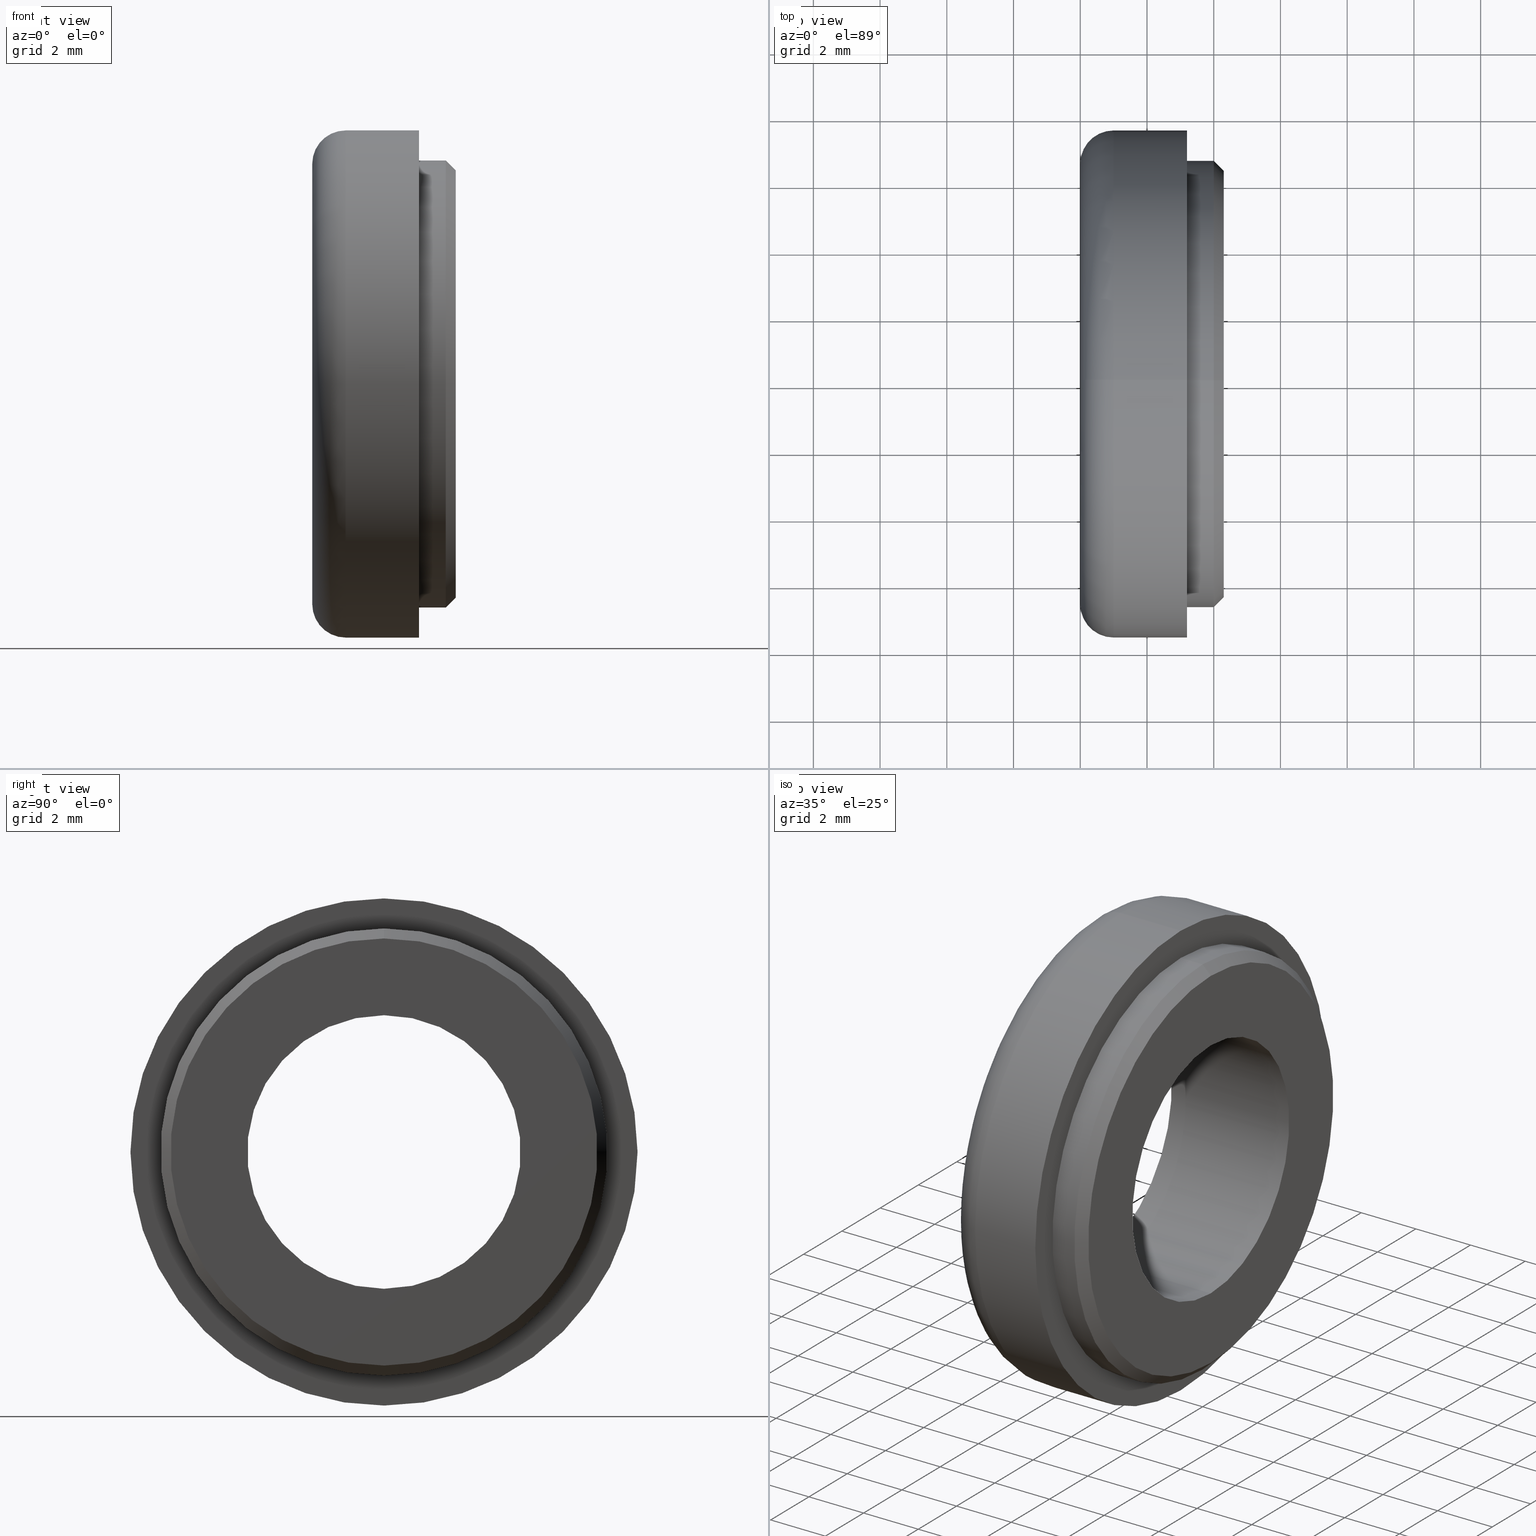
[diagram: canonical four-view strip — front | top / right | iso, engineering-drawing reading convention]
A machine part, canonical four-view strip (front | top / right | iso — engineering-drawing reading convention). The complete STEP part file that produces these views, byte-faithful:
ISO-10303-21;
HEADER;
FILE_DESCRIPTION (( 'STEP AP214' ),
    '1' );
FILE_NAME ('TL_421_M8.STEP',
    '2016-01-25T00:50:41',
    ( '' ),
    ( '' ),
    'SwSTEP 2.0',
    'SolidWorks 2015',
    '' );
FILE_SCHEMA (( 'AUTOMOTIVE_DESIGN' ));
ENDSEC;

DATA;
#1 = AXIS2_PLACEMENT_3D ( 'NONE', #80, #31, #284 ) ;
#2 = DIRECTION ( 'NONE',  ( 0.0000000000000000000, 0.0000000000000000000, 1.000000000000000000 ) ) ;
#3 = MANIFOLD_SOLID_BREP ( '��� - �����o��1', #550 ) ;
#4 = VECTOR ( 'NONE', #346, 1000.000000000000000 ) ;
#5 = EDGE_CURVE ( 'NONE', #442, #513, #127, .T. ) ;
#6 = SHAPE_DEFINITION_REPRESENTATION ( #459, #75 ) ;
#7 = AXIS2_PLACEMENT_3D ( 'NONE', #502, #132, #210 ) ;
#8 = PRODUCT_CONTEXT ( 'NONE', #714, 'mechanical' ) ;
#9 = DIRECTION ( 'NONE',  ( -1.000000000000000000, -0.0000000000000000000, -0.0000000000000000000 ) ) ;
#10 = CARTESIAN_POINT ( 'NONE',  ( 3.299999999999997200, 7.837739514543060900E-016, -6.400000000000000400 ) ) ;
#11 = EDGE_LOOP ( 'NONE', ( #73, #503, #509, #719 ) ) ;
#12 = ORIENTED_EDGE ( 'NONE', *, *, #604, .F. ) ;
#13 = SURFACE_SIDE_STYLE ('',( #275 ) ) ;
#14 = DIRECTION ( 'NONE',  ( 0.0000000000000000000, 0.0000000000000000000, 1.000000000000000000 ) ) ;
#15 = CYLINDRICAL_SURFACE ( 'NONE', #485, 6.599999999999999600 ) ;
#16 = EDGE_CURVE ( 'NONE', #224, #535, #350, .T. ) ;
#17 = ORIENTED_EDGE ( 'NONE', *, *, #510, .T. ) ;
#18 = AXIS2_PLACEMENT_3D ( 'NONE', #109, #638, #460 ) ;
#19 = ORIENTED_EDGE ( 'NONE', *, *, #524, .T. ) ;
#20 = DIRECTION ( 'NONE',  ( 0.0000000000000000000, 1.000000000000000000, -1.224646799147353200E-016 ) ) ;
#21 = ORIENTED_EDGE ( 'NONE', *, *, #437, .F. ) ;
#22 = CARTESIAN_POINT ( 'NONE',  ( 1.000000000000000000, 0.0000000000000000000, 6.599999999999999600 ) ) ;
#23 = DIRECTION ( 'NONE',  ( 0.0000000000000000000, 0.0000000000000000000, 1.000000000000000000 ) ) ;
#24 = EDGE_CURVE ( 'NONE', #521, #95, #159, .T. ) ;
#25 = ORIENTED_EDGE ( 'NONE', *, *, #397, .F. ) ;
#26 = CARTESIAN_POINT ( 'NONE',  ( 2.199999999999993500, 8.082668874372531000E-016, -6.599999999999999600 ) ) ;
#27 = ADVANCED_FACE ( 'NONE', ( #479, #245 ), #477, .F. ) ;
#28 = CARTESIAN_POINT ( 'NONE',  ( 1.000000000000000000, 8.082668874372531000E-016, 6.599999999999999600 ) ) ;
#29 = DIRECTION ( 'NONE',  ( 1.000000000000000000, 0.0000000000000000000, 0.0000000000000000000 ) ) ;
#30 = AXIS2_PLACEMENT_3D ( 'NONE', #266, #730, #515 ) ;
#31 = DIRECTION ( 'NONE',  ( 1.000000000000000000, 0.0000000000000000000, 0.0000000000000000000 ) ) ;
#32 = PRESENTATION_STYLE_ASSIGNMENT (( #261 ) ) ;
#33 = LINE ( 'NONE', #413, #409 ) ;
#34 = ORIENTED_EDGE ( 'NONE', *, *, #701, .F. ) ;
#35 = AXIS2_PLACEMENT_3D ( 'NONE', #533, #242, #416 ) ;
#36 = ORIENTED_EDGE ( 'NONE', *, *, #50, .F. ) ;
#37 = CYLINDRICAL_SURFACE ( 'NONE', #684, 4.099999999999999600 ) ;
#38 = CARTESIAN_POINT ( 'NONE',  ( 1.000000000000000000, 8.082668874372531000E-016, -6.599999999999999600 ) ) ;
#39 = DIRECTION ( 'NONE',  ( -1.000000000000000000, -0.0000000000000000000, -0.0000000000000000000 ) ) ;
#40 = VECTOR ( 'NONE', #611, 1000.000000000000000 ) ;
#41 = DIRECTION ( 'NONE',  ( -1.000000000000000000, -0.0000000000000000000, -0.0000000000000000000 ) ) ;
#42 = ORIENTED_EDGE ( 'NONE', *, *, #418, .T. ) ;
#43 = ADVANCED_FACE ( 'NONE', ( #258 ), #37, .F. ) ;
#44 = VECTOR ( 'NONE', #381, 1000.000000000000000 ) ;
#45 = CARTESIAN_POINT ( 'NONE',  ( -88.98999999999999500, 0.0000000000000000000, 0.0000000000000000000 ) ) ;
#46 = CARTESIAN_POINT ( 'NONE',  ( -88.98999999999999500, 8.205133554287266600E-016, -6.700000000000000200 ) ) ;
#47 = LINE ( 'NONE', #278, #69 ) ;
#48 = VECTOR ( 'NONE', #41, 1000.000000000000000 ) ;
#49 = AXIS2_PLACEMENT_3D ( 'NONE', #352, #212, #319 ) ;
#50 = EDGE_CURVE ( 'NONE', #599, #707, #120, .T. ) ;
#51 =( GEOMETRIC_REPRESENTATION_CONTEXT ( 3 ) GLOBAL_UNCERTAINTY_ASSIGNED_CONTEXT ( ( #667 ) ) GLOBAL_UNIT_ASSIGNED_CONTEXT ( ( #387, #285, #514 ) ) REPRESENTATION_CONTEXT ( 'NONE', 'WORKASPACE' ) );
#52 = DIRECTION ( 'NONE',  ( 1.000000000000000000, 0.0000000000000000000, 0.0000000000000000000 ) ) ;
#53 = CARTESIAN_POINT ( 'NONE',  ( 3.200000000000000200, 0.0000000000000000000, 0.0000000000000000000 ) ) ;
#54 = EDGE_LOOP ( 'NONE', ( #558, #85 ) ) ;
#55 = FILL_AREA_STYLE ('',( #475 ) ) ;
#56 = CARTESIAN_POINT ( 'NONE',  ( -88.98999999999999500, 0.0000000000000000000, 0.0000000000000000000 ) ) ;
#57 = CONICAL_SURFACE ( 'NONE', #732, 6.400000000000000400, 0.7853981633974569400 ) ;
#58 = FACE_OUTER_BOUND ( 'NONE', #539, .T. ) ;
#59 = ORIENTED_EDGE ( 'NONE', *, *, #679, .T. ) ;
#60 = VERTEX_POINT ( 'NONE', #528 ) ;
#61 = DIRECTION ( 'NONE',  ( 0.0000000000000000000, 0.0000000000000000000, 1.000000000000000000 ) ) ;
#62 = ORIENTED_EDGE ( 'NONE', *, *, #328, .F. ) ;
#63 = DIRECTION ( 'NONE',  ( 0.0000000000000000000, 0.0000000000000000000, -1.000000000000000000 ) ) ;
#64 = DIRECTION ( 'NONE',  ( -1.000000000000000000, -0.0000000000000000000, -0.0000000000000000000 ) ) ;
#65 = PRODUCT_DEFINITION_SHAPE ( 'NONE', 'NONE',  #171 ) ;
#66 = CARTESIAN_POINT ( 'NONE',  ( 0.0000000000000000000, 0.0000000000000000000, 0.0000000000000000000 ) ) ;
#67 = EDGE_CURVE ( 'NONE', #535, #630, #686, .T. ) ;
#68 = ADVANCED_FACE ( 'NONE', ( #231, #519 ), #713, .F. ) ;
#69 = VECTOR ( 'NONE', #612, 1000.000000000000000 ) ;
#70 = EDGE_CURVE ( 'NONE', #436, #95, #333, .T. ) ;
#71 = DIRECTION ( 'NONE',  ( -1.000000000000000000, -0.0000000000000000000, -0.0000000000000000000 ) ) ;
#72 = EDGE_LOOP ( 'NONE', ( #518, #316, #151, #236 ) ) ;
#73 = ORIENTED_EDGE ( 'NONE', *, *, #473, .T. ) ;
#74 = CARTESIAN_POINT ( 'NONE',  ( 3.200000000000000200, 9.307315673519885500E-016, -7.599999999999999600 ) ) ;
#75 = SHAPE_REPRESENTATION ( 'TL_421_M8', ( #131, #702, #7 ), #51 ) ;
#76 = DIRECTION ( 'NONE',  ( -1.000000000000000000, -0.0000000000000000000, -0.0000000000000000000 ) ) ;
#77 = DIRECTION ( 'NONE',  ( 0.0000000000000000000, 0.0000000000000000000, 1.000000000000000000 ) ) ;
#78 = CIRCLE ( 'NONE', #96, 6.700000000000000200 ) ;
#79 = ORIENTED_EDGE ( 'NONE', *, *, #110, .F. ) ;
#80 = CARTESIAN_POINT ( 'NONE',  ( 1.000000000000000000, 0.0000000000000000000, 0.0000000000000000000 ) ) ;
#81 = ORIENTED_EDGE ( 'NONE', *, *, #246, .T. ) ;
#82 = DIRECTION ( 'NONE',  ( 1.000000000000000000, 0.0000000000000000000, 0.0000000000000000000 ) ) ;
#83 = FACE_BOUND ( 'NONE', #653, .T. ) ;
#84 = AXIS2_PLACEMENT_3D ( 'NONE', #571, #52, #248 ) ;
#85 = ORIENTED_EDGE ( 'NONE', *, *, #253, .T. ) ;
#86 = DIRECTION ( 'NONE',  ( -1.000000000000000000, 0.0000000000000000000, 0.0000000000000000000 ) ) ;
#87 = CARTESIAN_POINT ( 'NONE',  ( 0.0000000000000000000, 0.0000000000000000000, 0.0000000000000000000 ) ) ;
#88 = FACE_OUTER_BOUND ( 'NONE', #490, .T. ) ;
#89 = SURFACE_STYLE_USAGE ( .BOTH. , #105 ) ;
#90 = ORIENTED_EDGE ( 'NONE', *, *, #385, .F. ) ;
#91 = ADVANCED_FACE ( 'NONE', ( #633, #500 ), #169, .T. ) ;
#92 = DIRECTION ( 'NONE',  ( 1.000000000000000000, 0.0000000000000000000, 0.0000000000000000000 ) ) ;
#93 = EDGE_CURVE ( 'NONE', #135, #229, #181, .T. ) ;
#94 = SURFACE_SIDE_STYLE ('',( #680 ) ) ;
#95 = VERTEX_POINT ( 'NONE', #38 ) ;
#96 = AXIS2_PLACEMENT_3D ( 'NONE', #488, #305, #602 ) ;
#97 = CARTESIAN_POINT ( 'NONE',  ( 2.199999999999993500, 0.0000000000000000000, 0.0000000000000000000 ) ) ;
#98 =( NAMED_UNIT ( * ) SI_UNIT ( $, .STERADIAN. ) SOLID_ANGLE_UNIT ( ) );
#99 = EDGE_LOOP ( 'NONE', ( #401, #395, #443, #676 ) ) ;
#100 = ADVANCED_FACE ( 'NONE', ( #454 ), #297, .T. ) ;
#101 = FACE_OUTER_BOUND ( 'NONE', #225, .T. ) ;
#102 = LINE ( 'NONE', #474, #247 ) ;
#103 = SURFACE_STYLE_USAGE ( .BOTH. , #13 ) ;
#104 = ORIENTED_EDGE ( 'NONE', *, *, #187, .F. ) ;
#105 = SURFACE_SIDE_STYLE ('',( #398 ) ) ;
#106 = DIRECTION ( 'NONE',  ( -1.000000000000000000, -0.0000000000000000000, -0.0000000000000000000 ) ) ;
#107 = LINE ( 'NONE', #342, #241 ) ;
#108 = COLOUR_RGB ( '',0.7921568627450980000, 0.8196078431372548800, 0.9333333333333333500 ) ;
#109 = CARTESIAN_POINT ( 'NONE',  ( -88.98999999999999500, 0.0000000000000000000, 0.0000000000000000000 ) ) ;
#110 = EDGE_CURVE ( 'NONE', #396, #555, #601, .T. ) ;
#111 = ORIENTED_EDGE ( 'NONE', *, *, #328, .T. ) ;
#112 = CARTESIAN_POINT ( 'NONE',  ( 0.0000000000000000000, 0.0000000000000000000, 4.099999999999999600 ) ) ;
#113 = CIRCLE ( 'NONE', #124, 4.099999999999999600 ) ;
#114 = ADVANCED_FACE ( 'NONE', ( #101 ), #215, .T. ) ;
#115 = EDGE_CURVE ( 'NONE', #224, #619, #478, .T. ) ;
#116 = PRODUCT_DEFINITION_FORMATION_WITH_SPECIFIED_SOURCE ( 'ANY', '', #560, .NOT_KNOWN. ) ;
#117 = DIRECTION ( 'NONE',  ( 0.0000000000000000000, 0.0000000000000000000, -1.000000000000000000 ) ) ;
#118 = VECTOR ( 'NONE', #506, 1000.000000000000000 ) ;
#119 = FACE_OUTER_BOUND ( 'NONE', #351, .T. ) ;
#120 = LINE ( 'NONE', #642, #48 ) ;
#121 = CARTESIAN_POINT ( 'NONE',  ( 0.0000000000000000000, 0.0000000000000000000, -6.599999999999999600 ) ) ;
#122 = FILL_AREA_STYLE ('',( #722 ) ) ;
#123 = EDGE_LOOP ( 'NONE', ( #274, #243 ) ) ;
#124 = AXIS2_PLACEMENT_3D ( 'NONE', #540, #76, #689 ) ;
#125 = FACE_OUTER_BOUND ( 'NONE', #339, .T. ) ;
#126 = LINE ( 'NONE', #46, #457 ) ;
#127 = CIRCLE ( 'NONE', #610, 6.400000000000000400 ) ;
#128 = CARTESIAN_POINT ( 'NONE',  ( -88.98999999999999500, 0.0000000000000000000, 0.0000000000000000000 ) ) ;
#129 = CARTESIAN_POINT ( 'NONE',  ( 0.0000000000000000000, 5.021051876504147400E-016, -4.099999999999999600 ) ) ;
#130 = CARTESIAN_POINT ( 'NONE',  ( -88.98999999999999500, 5.021051876504147400E-016, -4.099999999999999600 ) ) ;
#131 = AXIS2_PLACEMENT_3D ( 'NONE', #542, #698, #420 ) ;
#132 = DIRECTION ( 'NONE',  ( 0.0000000000000000000, 0.0000000000000000000, 1.000000000000000000 ) ) ;
#133 = DIRECTION ( 'NONE',  ( 0.0000000000000000000, 0.0000000000000000000, -1.000000000000000000 ) ) ;
#134 = AXIS2_PLACEMENT_3D ( 'NONE', #87, #262, #426 ) ;
#135 = VERTEX_POINT ( 'NONE', #112 ) ;
#136 = PRODUCT_CONTEXT ( 'NONE', #646, 'mechanical' ) ;
#137 = DIRECTION ( 'NONE',  ( 0.0000000000000000000, 0.0000000000000000000, 1.000000000000000000 ) ) ;
#138 = ADVANCED_FACE ( 'NONE', ( #384 ), #696, .T. ) ;
#139 = ORIENTED_EDGE ( 'NONE', *, *, #93, .T. ) ;
#140 = ORIENTED_EDGE ( 'NONE', *, *, #67, .F. ) ;
#141 = EDGE_CURVE ( 'NONE', #685, #135, #279, .T. ) ;
#142 = ADVANCED_BREP_SHAPE_REPRESENTATION ( '', ( #320, #254 ), #419 ) ;
#143 = AXIS2_PLACEMENT_3D ( 'NONE', #378, #716, #63 ) ;
#144 =( LENGTH_UNIT ( ) NAMED_UNIT ( * ) SI_UNIT ( .MILLI., .METRE. ) );
#145 = DIRECTION ( 'NONE',  ( 0.0000000000000000000, 0.0000000000000000000, -1.000000000000000000 ) ) ;
#146 =( NAMED_UNIT ( * ) PLANE_ANGLE_UNIT ( ) SI_UNIT ( $, .RADIAN. ) );
#147 = DIRECTION ( 'NONE',  ( 1.000000000000000000, 0.0000000000000000000, 0.0000000000000000000 ) ) ;
#148 = PRODUCT_RELATED_PRODUCT_CATEGORY ( 'part', '', ( #560 ) ) ;
#149 = TOROIDAL_SURFACE ( 'NONE', #1, 6.599999999999999600, 1.000000000000000000 ) ;
#150 = EDGE_LOOP ( 'NONE', ( #392, #615, #240, #374 ) ) ;
#151 = ORIENTED_EDGE ( 'NONE', *, *, #50, .T. ) ;
#152 = CARTESIAN_POINT ( 'NONE',  ( 3.200000000000000200, 0.0000000000000000000, 0.0000000000000000000 ) ) ;
#153 = ORIENTED_EDGE ( 'NONE', *, *, #551, .T. ) ;
#154 = DIRECTION ( 'NONE',  ( -1.000000000000000000, -0.0000000000000000000, -0.0000000000000000000 ) ) ;
#155 = DIRECTION ( 'NONE',  ( -0.0000000000000000000, 0.0000000000000000000, 1.000000000000000000 ) ) ;
#156 = AXIS2_PLACEMENT_3D ( 'NONE', #520, #651, #578 ) ;
#157 = ORIENTED_EDGE ( 'NONE', *, *, #711, .T. ) ;
#158 = CARTESIAN_POINT ( 'NONE',  ( 0.0000000000000000000, 0.0000000000000000000, 0.0000000000000000000 ) ) ;
#159 = LINE ( 'NONE', #220, #617 ) ;
#160 = ORIENTED_EDGE ( 'NONE', *, *, #587, .F. ) ;
#161 =( REPRESENTATION_RELATIONSHIP ('NONE','NONE', #75, #309 ) REPRESENTATION_RELATIONSHIP_WITH_TRANSFORMATION ( #286 )SHAPE_REPRESENTATION_RELATIONSHIP( ) );
#162 = SURFACE_STYLE_USAGE ( .BOTH. , #94 ) ;
#163 = PRODUCT_DEFINITION_CONTEXT ( 'detailed design', #327, 'design' ) ;
#164 = FACE_OUTER_BOUND ( 'NONE', #255, .T. ) ;
#165 = VECTOR ( 'NONE', #491, 1000.000000000000000 ) ;
#166 =( NAMED_UNIT ( * ) PLANE_ANGLE_UNIT ( ) SI_UNIT ( $, .RADIAN. ) );
#167 = LINE ( 'NONE', #74, #44 ) ;
#168 = CARTESIAN_POINT ( 'NONE',  ( 2.199999999999993500, 0.0000000000000000000, 6.700000000000000200 ) ) ;
#169 = PLANE ( 'NONE',  #299 ) ;
#170 = FACE_OUTER_BOUND ( 'NONE', #288, .T. ) ;
#171 = PRODUCT_DEFINITION ( 'UNKNOWN', '', #372, #668 ) ;
#172 = VECTOR ( 'NONE', #298, 1000.000000000000000 ) ;
#173 = DIRECTION ( 'NONE',  ( 0.0000000000000000000, 0.0000000000000000000, 1.000000000000000000 ) ) ;
#174 = DIRECTION ( 'NONE',  ( -1.000000000000000000, -0.0000000000000000000, -0.0000000000000000000 ) ) ;
#175 = APPLICATION_PROTOCOL_DEFINITION ( 'draft international standard', 'automotive_design', 1998, #714 ) ;
#176 = CARTESIAN_POINT ( 'NONE',  ( 0.0000000000000000000, 0.0000000000000000000, 0.0000000000000000000 ) ) ;
#177 = FACE_OUTER_BOUND ( 'NONE', #11, .T. ) ;
#178 = DIRECTION ( 'NONE',  ( -1.000000000000000000, -0.0000000000000000000, -0.0000000000000000000 ) ) ;
#179 = ORIENTED_EDGE ( 'NONE', *, *, #70, .F. ) ;
#180 = VERTEX_POINT ( 'NONE', #287 ) ;
#181 = CIRCLE ( 'NONE', #471, 4.099999999999999600 ) ;
#182 = CARTESIAN_POINT ( 'NONE',  ( 1.000000000000000000, 0.0000000000000000000, 0.0000000000000000000 ) ) ;
#183 = CARTESIAN_POINT ( 'NONE',  ( 0.0000000000000000000, 0.0000000000000000000, 0.0000000000000000000 ) ) ;
#184 = CYLINDRICAL_SURFACE ( 'NONE', #399, 7.599999999999999600 ) ;
#185 =( NAMED_UNIT ( * ) PLANE_ANGLE_UNIT ( ) SI_UNIT ( $, .RADIAN. ) );
#186 = ORIENTED_EDGE ( 'NONE', *, *, #209, .T. ) ;
#187 = EDGE_CURVE ( 'NONE', #707, #568, #349, .T. ) ;
#188 =( GEOMETRIC_REPRESENTATION_CONTEXT ( 3 ) GLOBAL_UNCERTAINTY_ASSIGNED_CONTEXT ( ( #200 ) ) GLOBAL_UNIT_ASSIGNED_CONTEXT ( ( #400, #670, #566 ) ) REPRESENTATION_CONTEXT ( 'NONE', 'WORKASPACE' ) );
#189 = SURFACE_SIDE_STYLE ('',( #194 ) ) ;
#190 = CIRCLE ( 'NONE', #681, 1.000000000000000000 ) ;
#191 = CARTESIAN_POINT ( 'NONE',  ( 3.200000000000000200, 0.0000000000000000000, 0.0000000000000000000 ) ) ;
#192 = CIRCLE ( 'NONE', #134, 6.599999999999999600 ) ;
#193 = ORIENTED_EDGE ( 'NONE', *, *, #626, .F. ) ;
#194 = SURFACE_STYLE_FILL_AREA ( #55 ) ;
#195 = EDGE_LOOP ( 'NONE', ( #655, #593, #19, #486 ) ) ;
#196 = VERTEX_POINT ( 'NONE', #609 ) ;
#197 = ORIENTED_EDGE ( 'NONE', *, *, #673, .T. ) ;
#198 = AXIS2_PLACEMENT_3D ( 'NONE', #152, #86, #403 ) ;
#199 = CIRCLE ( 'NONE', #234, 6.599999999999999600 ) ;
#200 = UNCERTAINTY_MEASURE_WITH_UNIT (LENGTH_MEASURE( 1.000000000000000100E-005 ), #400, 'distance_accuracy_value', 'NONE');
#201 =( LENGTH_UNIT ( ) NAMED_UNIT ( * ) SI_UNIT ( .MILLI., .METRE. ) );
#202 = LINE ( 'NONE', #313, #118 ) ;
#203 = CIRCLE ( 'NONE', #657, 4.099999999999999600 ) ;
#204 = CARTESIAN_POINT ( 'NONE',  ( 1.000000000000000000, 0.0000000000000000000, -6.599999999999999600 ) ) ;
#205 = CARTESIAN_POINT ( 'NONE',  ( 0.0000000000000000000, 8.082668874372531000E-016, -6.599999999999999600 ) ) ;
#206 = AXIS2_PLACEMENT_3D ( 'NONE', #176, #238, #531 ) ;
#207 = ORIENTED_EDGE ( 'NONE', *, *, #473, .F. ) ;
#208 = DIRECTION ( 'NONE',  ( 0.0000000000000000000, 0.0000000000000000000, 1.000000000000000000 ) ) ;
#209 = EDGE_CURVE ( 'NONE', #379, #712, #252, .T. ) ;
#210 = DIRECTION ( 'NONE',  ( 1.000000000000000000, 0.0000000000000000000, 0.0000000000000000000 ) ) ;
#211 = PRODUCT_DEFINITION ( 'UNKNOWN', '', #116, #250 ) ;
#212 = DIRECTION ( 'NONE',  ( 1.000000000000000000, 0.0000000000000000000, 0.0000000000000000000 ) ) ;
#213 = DIRECTION ( 'NONE',  ( 0.0000000000000000000, 0.0000000000000000000, -1.000000000000000000 ) ) ;
#214 = ORIENTED_EDGE ( 'NONE', *, *, #648, .F. ) ;
#215 = TOROIDAL_SURFACE ( 'NONE', #49, 6.599999999999999600, 1.000000000000000000 ) ;
#216 = ORIENTED_EDGE ( 'NONE', *, *, #354, .F. ) ;
#217 = DIRECTION ( 'NONE',  ( 0.0000000000000000000, 0.0000000000000000000, -1.000000000000000000 ) ) ;
#218 = EDGE_CURVE ( 'NONE', #229, #135, #382, .T. ) ;
#219 = AXIS2_PLACEMENT_3D ( 'NONE', #182, #393, #117 ) ;
#220 = CARTESIAN_POINT ( 'NONE',  ( 3.200000000000000200, 8.082668874372531000E-016, -6.599999999999999600 ) ) ;
#221 = UNCERTAINTY_MEASURE_WITH_UNIT (LENGTH_MEASURE( 1.000000000000000100E-005 ), #658, 'distance_accuracy_value', 'NONE');
#222 = ORIENTED_EDGE ( 'NONE', *, *, #547, .T. ) ;
#223 = EDGE_CURVE ( 'NONE', #95, #436, #390, .T. ) ;
#224 = VERTEX_POINT ( 'NONE', #294 ) ;
#225 = EDGE_LOOP ( 'NONE', ( #476, #495, #310, #34 ) ) ;
#226 = DIRECTION ( 'NONE',  ( 0.0000000000000000000, 0.0000000000000000000, 1.000000000000000000 ) ) ;
#227 = CYLINDRICAL_SURFACE ( 'NONE', #614, 4.099999999999999600 ) ;
#228 = COLOUR_RGB ( '',0.7921568627450980000, 0.8196078431372548800, 0.9333333333333333500 ) ;
#229 = VERTEX_POINT ( 'NONE', #129 ) ;
#230 = DIRECTION ( 'NONE',  ( -1.000000000000000000, -0.0000000000000000000, -0.0000000000000000000 ) ) ;
#231 = FACE_BOUND ( 'NONE', #523, .T. ) ;
#232 = LINE ( 'NONE', #544, #361 ) ;
#233 = CARTESIAN_POINT ( 'NONE',  ( 2.199999999999993500, 0.0000000000000000000, 0.0000000000000000000 ) ) ;
#234 = AXIS2_PLACEMENT_3D ( 'NONE', #183, #582, #2 ) ;
#235 = EDGE_LOOP ( 'NONE', ( #81, #17, #104, #36 ) ) ;
#236 = ORIENTED_EDGE ( 'NONE', *, *, #324, .F. ) ;
#237 = ORIENTED_EDGE ( 'NONE', *, *, #629, .F. ) ;
#238 = DIRECTION ( 'NONE',  ( -1.000000000000000000, -0.0000000000000000000, -0.0000000000000000000 ) ) ;
#239 = DIRECTION ( 'NONE',  ( -1.000000000000000000, -0.0000000000000000000, -0.0000000000000000000 ) ) ;
#240 = ORIENTED_EDGE ( 'NONE', *, *, #354, .T. ) ;
#241 = VECTOR ( 'NONE', #415, 1000.000000000000000 ) ;
#242 = DIRECTION ( 'NONE',  ( -1.000000000000000000, -0.0000000000000000000, -0.0000000000000000000 ) ) ;
#243 = ORIENTED_EDGE ( 'NONE', *, *, #324, .T. ) ;
#244 = STYLED_ITEM ( 'NONE', ( #691 ), #320 ) ;
#245 = FACE_OUTER_BOUND ( 'NONE', #54, .T. ) ;
#246 = EDGE_CURVE ( 'NONE', #599, #356, #78, .T. ) ;
#247 = VECTOR ( 'NONE', #239, 1000.000000000000000 ) ;
#248 = DIRECTION ( 'NONE',  ( 0.0000000000000000000, 0.0000000000000000000, -1.000000000000000000 ) ) ;
#249 = CARTESIAN_POINT ( 'NONE',  ( -88.98999999999999500, 0.0000000000000000000, 0.0000000000000000000 ) ) ;
#250 = PRODUCT_DEFINITION_CONTEXT ( 'detailed design', #561, 'design' ) ;
#251 = CARTESIAN_POINT ( 'NONE',  ( 3.299999999999997200, 0.0000000000000000000, 0.0000000000000000000 ) ) ;
#252 = CIRCLE ( 'NONE', #625, 4.099999999999999600 ) ;
#253 = EDGE_CURVE ( 'NONE', #359, #731, #192, .T. ) ;
#254 = AXIS2_PLACEMENT_3D ( 'NONE', #530, #594, #147 ) ;
#255 = EDGE_LOOP ( 'NONE', ( #59, #543, #160, #315 ) ) ;
#256 = CARTESIAN_POINT ( 'NONE',  ( 0.0000000000000000000, 0.0000000000000000000, 0.0000000000000000000 ) ) ;
#257 = CARTESIAN_POINT ( 'NONE',  ( 1.000000000000000000, 0.0000000000000000000, 7.599999999999999600 ) ) ;
#258 = FACE_OUTER_BOUND ( 'NONE', #99, .T. ) ;
#259 = CARTESIAN_POINT ( 'NONE',  ( 1.000000000000000000, 0.0000000000000000000, 0.0000000000000000000 ) ) ;
#260 = EDGE_LOOP ( 'NONE', ( #21, #431 ) ) ;
#261 = SURFACE_STYLE_USAGE ( .BOTH. , #189 ) ;
#262 = DIRECTION ( 'NONE',  ( -1.000000000000000000, -0.0000000000000000000, -0.0000000000000000000 ) ) ;
#263 = ADVANCED_FACE ( 'NONE', ( #727 ), #149, .T. ) ;
#264 =( LENGTH_UNIT ( ) NAMED_UNIT ( * ) SI_UNIT ( .MILLI., .METRE. ) );
#265 = AXIS2_PLACEMENT_3D ( 'NONE', #682, #71, #217 ) ;
#266 = CARTESIAN_POINT ( 'NONE',  ( 1.084202172485504400E-016, 6.599999999999999600, 0.0000000000000000000 ) ) ;
#267 = UNCERTAINTY_MEASURE_WITH_UNIT (LENGTH_MEASURE( 1.000000000000000100E-005 ), #201, 'distance_accuracy_value', 'NONE');
#268 = DIRECTION ( 'NONE',  ( 0.0000000000000000000, 0.0000000000000000000, 1.000000000000000000 ) ) ;
#269 = DIRECTION ( 'NONE',  ( 0.0000000000000000000, 0.0000000000000000000, 1.000000000000000000 ) ) ;
#270 = EDGE_LOOP ( 'NONE', ( #434, #598 ) ) ;
#271 = SHAPE_REPRESENTATION_RELATIONSHIP ( 'NONE' , 'NONE' ,  #552, #142 ) ;
#272 = ADVANCED_FACE ( 'NONE', ( #125 ), #445, .F. ) ;
#273 = PRODUCT_DEFINITION ( 'UNKNOWN', '', #308, #163 ) ;
#274 = ORIENTED_EDGE ( 'NONE', *, *, #187, .T. ) ;
#275 = SURFACE_STYLE_FILL_AREA ( #122 ) ;
#276 = DIRECTION ( 'NONE',  ( 1.000000000000000000, 0.0000000000000000000, 0.0000000000000000000 ) ) ;
#277 = AXIS2_PLACEMENT_3D ( 'NONE', #290, #174, #61 ) ;
#278 = CARTESIAN_POINT ( 'NONE',  ( 3.200000000000000200, 0.0000000000000000000, 7.599999999999999600 ) ) ;
#279 = LINE ( 'NONE', #647, #172 ) ;
#280 = DIRECTION ( 'NONE',  ( 0.0000000000000000000, 0.0000000000000000000, 1.000000000000000000 ) ) ;
#281 = EDGE_LOOP ( 'NONE', ( #453, #193, #222, #389 ) ) ;
#282 = STYLED_ITEM ( 'NONE', ( #32 ), #635 ) ;
#283 = AXIS2_PLACEMENT_3D ( 'NONE', #402, #307, #622 ) ;
#284 = DIRECTION ( 'NONE',  ( 0.0000000000000000000, 0.0000000000000000000, -1.000000000000000000 ) ) ;
#285 =( NAMED_UNIT ( * ) PLANE_ANGLE_UNIT ( ) SI_UNIT ( $, .RADIAN. ) );
#286 = ITEM_DEFINED_TRANSFORMATION ( 'NONE', 'NONE', #702,  #254 ) ;
#287 = CARTESIAN_POINT ( 'NONE',  ( 3.200000000000000200, 0.0000000000000000000, 7.599999999999999600 ) ) ;
#288 = EDGE_LOOP ( 'NONE', ( #527, #522, #710, #640 ) ) ;
#289 = ORIENTED_EDGE ( 'NONE', *, *, #16, .F. ) ;
#290 = CARTESIAN_POINT ( 'NONE',  ( 3.200000000000000200, 0.0000000000000000000, 0.0000000000000000000 ) ) ;
#291 = CARTESIAN_POINT ( 'NONE',  ( 3.000000000000002700, 0.0000000000000000000, 0.0000000000000000000 ) ) ;
#292 = EDGE_LOOP ( 'NONE', ( #25, #197, #186, #665 ) ) ;
#293 = DIRECTION ( 'NONE',  ( -1.000000000000000000, -0.0000000000000000000, -0.0000000000000000000 ) ) ;
#294 = CARTESIAN_POINT ( 'NONE',  ( 0.0000000000000000000, 8.694992273946207700E-016, 6.599999999999999600 ) ) ;
#295 = AXIS2_PLACEMENT_3D ( 'NONE', #654, #414, #649 ) ;
#296 = ORIENTED_EDGE ( 'NONE', *, *, #711, .F. ) ;
#297 = CYLINDRICAL_SURFACE ( 'NONE', #463, 6.700000000000000200 ) ;
#298 = DIRECTION ( 'NONE',  ( -1.000000000000000000, 0.0000000000000000000, 0.0000000000000000000 ) ) ;
#299 = AXIS2_PLACEMENT_3D ( 'NONE', #546, #631, #628 ) ;
#300 = CIRCLE ( 'NONE', #362, 6.700000000000000200 ) ;
#301 = CYLINDRICAL_SURFACE ( 'NONE', #295, 6.599999999999999600 ) ;
#302 = DIRECTION ( 'NONE',  ( 0.0000000000000000000, 0.0000000000000000000, 1.000000000000000000 ) ) ;
#303 = EDGE_LOOP ( 'NONE', ( #42, #153 ) ) ;
#304 = CARTESIAN_POINT ( 'NONE',  ( 3.000000000000002700, 8.205133554287266600E-016, -6.700000000000000200 ) ) ;
#305 = DIRECTION ( 'NONE',  ( -1.000000000000000000, -0.0000000000000000000, -0.0000000000000000000 ) ) ;
#306 = DIRECTION ( 'NONE',  ( 1.000000000000000000, 0.0000000000000000000, 0.0000000000000000000 ) ) ;
#307 = DIRECTION ( 'NONE',  ( 1.000000000000000000, 0.0000000000000000000, 0.0000000000000000000 ) ) ;
#308 = PRODUCT_DEFINITION_FORMATION_WITH_SPECIFIED_SOURCE ( 'ANY', '', #688, .NOT_KNOWN. ) ;
#309 = SHAPE_REPRESENTATION ( 'washer', ( #254 ), #188 ) ;
#310 = ORIENTED_EDGE ( 'NONE', *, *, #484, .F. ) ;
#311 = PRESENTATION_LAYER_ASSIGNMENT (  '', '', ( #244 ) ) ;
#312 =( NAMED_UNIT ( * ) SI_UNIT ( $, .STERADIAN. ) SOLID_ANGLE_UNIT ( ) );
#313 = CARTESIAN_POINT ( 'NONE',  ( 3.200000000000000200, 5.021051876504147400E-016, -4.099999999999999600 ) ) ;
#314 = ORIENTED_EDGE ( 'NONE', *, *, #532, .F. ) ;
#315 = ORIENTED_EDGE ( 'NONE', *, *, #524, .F. ) ;
#316 = ORIENTED_EDGE ( 'NONE', *, *, #604, .T. ) ;
#317 =( NAMED_UNIT ( * ) SI_UNIT ( $, .STERADIAN. ) SOLID_ANGLE_UNIT ( ) );
#318 = FACE_OUTER_BOUND ( 'NONE', #427, .T. ) ;
#319 = DIRECTION ( 'NONE',  ( 0.0000000000000000000, 0.0000000000000000000, -1.000000000000000000 ) ) ;
#320 = MANIFOLD_SOLID_BREP ( '��]1', #652 ) ;
#321 = AXIS2_PLACEMENT_3D ( 'NONE', #660, #106, #280 ) ;
#322 = ADVANCED_FACE ( 'NONE', ( #58 ), #708, .T. ) ;
#323 = DIRECTION ( 'NONE',  ( 0.0000000000000000000, 0.0000000000000000000, -1.000000000000000000 ) ) ;
#324 = EDGE_CURVE ( 'NONE', #568, #707, #348, .T. ) ;
#325 = PRESENTATION_LAYER_ASSIGNMENT (  '', '', ( #282 ) ) ;
#326 = LINE ( 'NONE', #130, #4 ) ;
#327 = APPLICATION_CONTEXT ( 'automotive_design' ) ;
#328 = EDGE_CURVE ( 'NONE', #180, #196, #683, .T. ) ;
#329 = DIRECTION ( 'NONE',  ( 0.0000000000000000000, 0.0000000000000000000, -1.000000000000000000 ) ) ;
#330 = COLOUR_RGB ( '',0.7921568627450980000, 0.8196078431372548800, 0.9333333333333333500 ) ;
#331 = CARTESIAN_POINT ( 'NONE',  ( 0.0000000000000000000, 0.0000000000000000000, 0.0000000000000000000 ) ) ;
#332 = ORIENTED_EDGE ( 'NONE', *, *, #639, .T. ) ;
#333 = CIRCLE ( 'NONE', #447, 6.599999999999999600 ) ;
#334 = DIRECTION ( 'NONE',  ( -1.000000000000000000, -0.0000000000000000000, -0.0000000000000000000 ) ) ;
#335 = FACE_OUTER_BOUND ( 'NONE', #281, .T. ) ;
#336 = AXIS2_PLACEMENT_3D ( 'NONE', #429, #29, #417 ) ;
#337 = FACE_OUTER_BOUND ( 'NONE', #150, .T. ) ;
#338 = CARTESIAN_POINT ( 'NONE',  ( 2.199999999999993500, 8.205133554287266600E-016, -6.700000000000000200 ) ) ;
#339 = EDGE_LOOP ( 'NONE', ( #461, #607, #179, #216 ) ) ;
#340 =( LENGTH_UNIT ( ) NAMED_UNIT ( * ) SI_UNIT ( .MILLI., .METRE. ) );
#341 = MECHANICAL_DESIGN_GEOMETRIC_PRESENTATION_REPRESENTATION (  '', ( #666 ), #489 ) ;
#342 = CARTESIAN_POINT ( 'NONE',  ( -88.98999999999999500, 8.082668874372531000E-016, -6.599999999999999600 ) ) ;
#343 = CARTESIAN_POINT ( 'NONE',  ( 0.0000000000000000000, 0.0000000000000000000, 0.0000000000000000000 ) ) ;
#344 = PRODUCT_RELATED_PRODUCT_CATEGORY ( 'part', '', ( #688 ) ) ;
#345 =( NAMED_UNIT ( * ) PLANE_ANGLE_UNIT ( ) SI_UNIT ( $, .RADIAN. ) );
#346 = DIRECTION ( 'NONE',  ( -1.000000000000000000, -0.0000000000000000000, -0.0000000000000000000 ) ) ;
#347 = MECHANICAL_DESIGN_GEOMETRIC_PRESENTATION_REPRESENTATION (  '', ( #244 ), #376 ) ;
#348 = CIRCLE ( 'NONE', #451, 6.700000000000000200 ) ;
#349 = CIRCLE ( 'NONE', #585, 6.700000000000000200 ) ;
#350 = CIRCLE ( 'NONE', #408, 1.000000000000000000 ) ;
#351 = EDGE_LOOP ( 'NONE', ( #314, #433, #332, #12 ) ) ;
#352 = CARTESIAN_POINT ( 'NONE',  ( 1.000000000000000000, 0.0000000000000000000, 0.0000000000000000000 ) ) ;
#353 = DIRECTION ( 'NONE',  ( 1.000000000000000000, 0.0000000000000000000, 0.0000000000000000000 ) ) ;
#354 = EDGE_CURVE ( 'NONE', #60, #436, #33, .T. ) ;
#355 = MECHANICAL_DESIGN_GEOMETRIC_PRESENTATION_REPRESENTATION (  '', ( #282 ), #386 ) ;
#356 = VERTEX_POINT ( 'NONE', #304 ) ;
#357 = DIRECTION ( 'NONE',  ( 0.0000000000000000000, -1.000000000000000000, 0.0000000000000000000 ) ) ;
#358 = DIRECTION ( 'NONE',  ( 0.0000000000000000000, 0.0000000000000000000, 1.000000000000000000 ) ) ;
#359 = VERTEX_POINT ( 'NONE', #205 ) ;
#360 = ORIENTED_EDGE ( 'NONE', *, *, #67, .T. ) ;
#361 = VECTOR ( 'NONE', #507, 1000.000000000000000 ) ;
#362 = AXIS2_PLACEMENT_3D ( 'NONE', #291, #672, #173 ) ;
#363 = FILL_AREA_STYLE_COLOUR ( '', #108 ) ;
#364 = PRODUCT_DEFINITION_SHAPE ( 'NONE', 'NONE',  #211 ) ;
#365 = DIRECTION ( 'NONE',  ( -1.000000000000000000, -0.0000000000000000000, -0.0000000000000000000 ) ) ;
#366 = PRODUCT_RELATED_PRODUCT_CATEGORY ( 'part', '', ( #529 ) ) ;
#367 = CARTESIAN_POINT ( 'NONE',  ( 3.299999999999997200, 8.021436534415164200E-016, -6.400000000000000400 ) ) ;
#368 = ADVANCED_FACE ( 'NONE', ( #508 ), #227, .F. ) ;
#369 = DIRECTION ( 'NONE',  ( 0.0000000000000000000, 0.0000000000000000000, 1.000000000000000000 ) ) ;
#370 = AXIS2_PLACEMENT_3D ( 'NONE', #435, #64, #466 ) ;
#371 = CARTESIAN_POINT ( 'NONE',  ( 0.0000000000000000000, 0.0000000000000000000, 4.099999999999999600 ) ) ;
#372 = PRODUCT_DEFINITION_FORMATION_WITH_SPECIFIED_SOURCE ( 'ANY', '', #529, .NOT_KNOWN. ) ;
#373 = FILL_AREA_STYLE ('',( #363 ) ) ;
#374 = ORIENTED_EDGE ( 'NONE', *, *, #223, .F. ) ;
#375 = VERTEX_POINT ( 'NONE', #458 ) ;
#376 =( GEOMETRIC_REPRESENTATION_CONTEXT ( 3 ) GLOBAL_UNCERTAINTY_ASSIGNED_CONTEXT ( ( #717 ) ) GLOBAL_UNIT_ASSIGNED_CONTEXT ( ( #340, #345, #312 ) ) REPRESENTATION_CONTEXT ( 'NONE', 'WORKASPACE' ) );
#377 = LINE ( 'NONE', #465, #40 ) ;
#378 = CARTESIAN_POINT ( 'NONE',  ( 0.0000000000000000000, 0.0000000000000000000, 0.0000000000000000000 ) ) ;
#379 = VERTEX_POINT ( 'NONE', #470 ) ;
#380 = CARTESIAN_POINT ( 'NONE',  ( 3.200000000000000200, 0.0000000000000000000, 0.0000000000000000000 ) ) ;
#381 = DIRECTION ( 'NONE',  ( -1.000000000000000000, -0.0000000000000000000, -0.0000000000000000000 ) ) ;
#382 = CIRCLE ( 'NONE', #671, 4.099999999999999600 ) ;
#383 = UNCERTAINTY_MEASURE_WITH_UNIT (LENGTH_MEASURE( 1.000000000000000100E-005 ), #144, 'distance_accuracy_value', 'NONE');
#384 = FACE_OUTER_BOUND ( 'NONE', #195, .T. ) ;
#385 = EDGE_CURVE ( 'NONE', #60, #521, #718, .T. ) ;
#386 =( GEOMETRIC_REPRESENTATION_CONTEXT ( 3 ) GLOBAL_UNCERTAINTY_ASSIGNED_CONTEXT ( ( #221 ) ) GLOBAL_UNIT_ASSIGNED_CONTEXT ( ( #658, #166, #616 ) ) REPRESENTATION_CONTEXT ( 'NONE', 'WORKASPACE' ) );
#387 =( LENGTH_UNIT ( ) NAMED_UNIT ( * ) SI_UNIT ( .MILLI., .METRE. ) );
#388 = DIRECTION ( 'NONE',  ( 1.000000000000000000, 0.0000000000000000000, 0.0000000000000000000 ) ) ;
#389 = ORIENTED_EDGE ( 'NONE', *, *, #437, .T. ) ;
#390 = CIRCLE ( 'NONE', #584, 6.599999999999999600 ) ;
#391 = DIRECTION ( 'NONE',  ( 1.000000000000000000, 0.0000000000000000000, 0.0000000000000000000 ) ) ;
#392 = ORIENTED_EDGE ( 'NONE', *, *, #24, .F. ) ;
#393 = DIRECTION ( 'NONE',  ( 1.000000000000000000, 0.0000000000000000000, 0.0000000000000000000 ) ) ;
#394 = DIRECTION ( 'NONE',  ( -1.000000000000000000, -0.0000000000000000000, -0.0000000000000000000 ) ) ;
#395 = ORIENTED_EDGE ( 'NONE', *, *, #695, .T. ) ;
#396 = VERTEX_POINT ( 'NONE', #26 ) ;
#397 = EDGE_CURVE ( 'NONE', #375, #632, #573, .T. ) ;
#398 = SURFACE_STYLE_FILL_AREA ( #694 ) ;
#399 = AXIS2_PLACEMENT_3D ( 'NONE', #191, #230, #137 ) ;
#400 =( LENGTH_UNIT ( ) NAMED_UNIT ( * ) SI_UNIT ( .MILLI., .METRE. ) );
#401 = ORIENTED_EDGE ( 'NONE', *, *, #551, .F. ) ;
#402 = CARTESIAN_POINT ( 'NONE',  ( 2.200000000000000200, 6.700000000000000200, 0.0000000000000000000 ) ) ;
#403 = DIRECTION ( 'NONE',  ( 0.0000000000000000000, 0.0000000000000000000, 1.000000000000000000 ) ) ;
#404 = DIRECTION ( 'NONE',  ( 0.0000000000000000000, 0.0000000000000000000, 1.000000000000000000 ) ) ;
#405 = FACE_OUTER_BOUND ( 'NONE', #235, .T. ) ;
#406 = CARTESIAN_POINT ( 'NONE',  ( 3.299999999999997200, 0.0000000000000000000, 0.0000000000000000000 ) ) ;
#407 = ITEM_DEFINED_TRANSFORMATION ( 'NONE', 'NONE', #7,  #254 ) ;
#408 = AXIS2_PLACEMENT_3D ( 'NONE', #28, #20, #613 ) ;
#409 = VECTOR ( 'NONE', #512, 1000.000000000000000 ) ;
#410 = COLOUR_RGB ( '',0.7921568627450980000, 0.8196078431372548800, 0.9333333333333333500 ) ;
#411 = DIRECTION ( 'NONE',  ( 0.0000000000000000000, 0.0000000000000000000, 1.000000000000000000 ) ) ;
#412 = AXIS2_PLACEMENT_3D ( 'NONE', #53, #388, #421 ) ;
#413 = CARTESIAN_POINT ( 'NONE',  ( 3.200000000000000200, 0.0000000000000000000, 6.599999999999999600 ) ) ;
#414 = DIRECTION ( 'NONE',  ( -1.000000000000000000, -0.0000000000000000000, -0.0000000000000000000 ) ) ;
#415 = DIRECTION ( 'NONE',  ( -1.000000000000000000, -0.0000000000000000000, -0.0000000000000000000 ) ) ;
#416 = DIRECTION ( 'NONE',  ( 0.0000000000000000000, 0.0000000000000000000, 1.000000000000000000 ) ) ;
#417 = DIRECTION ( 'NONE',  ( 0.0000000000000000000, 0.0000000000000000000, -1.000000000000000000 ) ) ;
#418 = EDGE_CURVE ( 'NONE', #685, #536, #203, .T. ) ;
#419 =( GEOMETRIC_REPRESENTATION_CONTEXT ( 3 ) GLOBAL_UNCERTAINTY_ASSIGNED_CONTEXT ( ( #526 ) ) GLOBAL_UNIT_ASSIGNED_CONTEXT ( ( #264, #541, #98 ) ) REPRESENTATION_CONTEXT ( 'NONE', 'WORKASPACE' ) );
#420 = DIRECTION ( 'NONE',  ( 1.000000000000000000, 0.0000000000000000000, 0.0000000000000000000 ) ) ;
#421 = DIRECTION ( 'NONE',  ( 0.0000000000000000000, 0.0000000000000000000, -1.000000000000000000 ) ) ;
#422 = SHAPE_REPRESENTATION_RELATIONSHIP ( 'NONE' , 'NONE' ,  #309, #635 ) ;
#423 = CIRCLE ( 'NONE', #690, 4.099999999999999600 ) ;
#424 = SHAPE_DEFINITION_REPRESENTATION ( #364, #309 ) ;
#425 = APPLICATION_CONTEXT ( 'automotive_design' ) ;
#426 = DIRECTION ( 'NONE',  ( 0.0000000000000000000, 0.0000000000000000000, 1.000000000000000000 ) ) ;
#427 = EDGE_LOOP ( 'NONE', ( #237, #157, #729, #497 ) ) ;
#428 = ORIENTED_EDGE ( 'NONE', *, *, #626, .T. ) ;
#429 = CARTESIAN_POINT ( 'NONE',  ( 3.200000000000000200, 0.0000000000000000000, 0.0000000000000000000 ) ) ;
#430 = APPLICATION_PROTOCOL_DEFINITION ( 'draft international standard', 'automotive_design', 1998, #481 ) ;
#431 = ORIENTED_EDGE ( 'NONE', *, *, #209, .F. ) ;
#432 = DIRECTION ( 'NONE',  ( -1.000000000000000000, 0.0000000000000000000, -0.0000000000000000000 ) ) ;
#433 = ORIENTED_EDGE ( 'NONE', *, *, #5, .T. ) ;
#434 = ORIENTED_EDGE ( 'NONE', *, *, #569, .T. ) ;
#435 = CARTESIAN_POINT ( 'NONE',  ( -88.98999999999999500, 0.0000000000000000000, 0.0000000000000000000 ) ) ;
#436 = VERTEX_POINT ( 'NONE', #22 ) ;
#437 = EDGE_CURVE ( 'NONE', #712, #379, #423, .T. ) ;
#438 = ADVANCED_FACE ( 'NONE', ( #119 ), #57, .T. ) ;
#439 = AXIS2_PLACEMENT_3D ( 'NONE', #251, #501, #358 ) ;
#440 = APPLICATION_PROTOCOL_DEFINITION ( 'draft international standard', 'automotive_design', 1998, #327 ) ;
#441 = DIRECTION ( 'NONE',  ( -1.000000000000000000, -0.0000000000000000000, -0.0000000000000000000 ) ) ;
#442 = VERTEX_POINT ( 'NONE', #367 ) ;
#443 = ORIENTED_EDGE ( 'NONE', *, *, #93, .F. ) ;
#444 = CARTESIAN_POINT ( 'NONE',  ( 1.000000000000000000, 0.0000000000000000000, 0.0000000000000000000 ) ) ;
#445 = CYLINDRICAL_SURFACE ( 'NONE', #277, 6.599999999999999600 ) ;
#446 = DIRECTION ( 'NONE',  ( -1.000000000000000000, 0.0000000000000000000, 0.0000000000000000000 ) ) ;
#447 = AXIS2_PLACEMENT_3D ( 'NONE', #259, #82, #455 ) ;
#448 = DIRECTION ( 'NONE',  ( -1.000000000000000000, -0.0000000000000000000, -0.0000000000000000000 ) ) ;
#449 = PLANE ( 'NONE',  #219 ) ;
#450 = CARTESIAN_POINT ( 'NONE',  ( 1.000000000000000000, 5.021051876504147400E-016, -4.099999999999999600 ) ) ;
#451 = AXIS2_PLACEMENT_3D ( 'NONE', #233, #562, #404 ) ;
#452 = DIRECTION ( 'NONE',  ( 0.0000000000000000000, 0.0000000000000000000, -1.000000000000000000 ) ) ;
#453 = ORIENTED_EDGE ( 'NONE', *, *, #673, .F. ) ;
#454 = FACE_OUTER_BOUND ( 'NONE', #72, .T. ) ;
#455 = DIRECTION ( 'NONE',  ( 0.0000000000000000000, 0.0000000000000000000, -1.000000000000000000 ) ) ;
#456 = CIRCLE ( 'NONE', #336, 7.599999999999999600 ) ;
#457 = VECTOR ( 'NONE', #448, 1000.000000000000000 ) ;
#458 = CARTESIAN_POINT ( 'NONE',  ( 3.299999999999997200, 5.021051876504146400E-016, -4.099999999999998800 ) ) ;
#459 = PRODUCT_DEFINITION_SHAPE ( 'NONE', 'NONE',  #273 ) ;
#460 = DIRECTION ( 'NONE',  ( 0.0000000000000000000, 0.0000000000000000000, 1.000000000000000000 ) ) ;
#461 = ORIENTED_EDGE ( 'NONE', *, *, #385, .T. ) ;
#462 = ORIENTED_EDGE ( 'NONE', *, *, #569, .F. ) ;
#463 = AXIS2_PLACEMENT_3D ( 'NONE', #249, #394, #302 ) ;
#464 = CARTESIAN_POINT ( 'NONE',  ( 3.200000000000000200, 0.0000000000000000000, 0.0000000000000000000 ) ) ;
#465 = CARTESIAN_POINT ( 'NONE',  ( 3.299999999999997200, 0.0000000000000000000, 6.400000000000000400 ) ) ;
#466 = DIRECTION ( 'NONE',  ( 0.0000000000000000000, 0.0000000000000000000, 1.000000000000000000 ) ) ;
#467 = FACE_BOUND ( 'NONE', #493, .T. ) ;
#468 = EDGE_CURVE ( 'NONE', #180, #535, #47, .T. ) ;
#469 = STYLED_ITEM ( 'NONE', ( #525 ), #142 ) ;
#470 = CARTESIAN_POINT ( 'NONE',  ( 0.0000000000000000000, 5.021051876504147400E-016, -4.099999999999999600 ) ) ;
#471 = AXIS2_PLACEMENT_3D ( 'NONE', #331, #276, #323 ) ;
#472 = PRESENTATION_STYLE_ASSIGNMENT (( #103 ) ) ;
#473 = EDGE_CURVE ( 'NONE', #513, #442, #559, .T. ) ;
#474 = CARTESIAN_POINT ( 'NONE',  ( -88.98999999999999500, 0.0000000000000000000, 6.599999999999999600 ) ) ;
#475 = FILL_AREA_STYLE_COLOUR ( '', #330 ) ;
#476 = ORIENTED_EDGE ( 'NONE', *, *, #115, .F. ) ;
#477 = PLANE ( 'NONE',  #30 ) ;
#478 = CIRCLE ( 'NONE', #206, 6.599999999999999600 ) ;
#479 = FACE_BOUND ( 'NONE', #260, .T. ) ;
#480 = EDGE_LOOP ( 'NONE', ( #289, #462, #726, #140 ) ) ;
#481 = APPLICATION_CONTEXT ( 'automotive_design' ) ;
#482 = CIRCLE ( 'NONE', #563, 6.599999999999999600 ) ;
#483 = CARTESIAN_POINT ( 'NONE',  ( 1.000000000000000000, 0.0000000000000000000, 4.099999999999999600 ) ) ;
#484 = EDGE_CURVE ( 'NONE', #630, #535, #645, .T. ) ;
#485 = AXIS2_PLACEMENT_3D ( 'NONE', #56, #334, #369 ) ;
#486 = ORIENTED_EDGE ( 'NONE', *, *, #253, .F. ) ;
#487 = DIRECTION ( 'NONE',  ( 0.0000000000000000000, 0.0000000000000000000, 1.000000000000000000 ) ) ;
#488 = CARTESIAN_POINT ( 'NONE',  ( 3.000000000000002700, 0.0000000000000000000, 0.0000000000000000000 ) ) ;
#489 =( GEOMETRIC_REPRESENTATION_CONTEXT ( 3 ) GLOBAL_UNCERTAINTY_ASSIGNED_CONTEXT ( ( #383 ) ) GLOBAL_UNIT_ASSIGNED_CONTEXT ( ( #144, #146, #592 ) ) REPRESENTATION_CONTEXT ( 'NONE', 'WORKASPACE' ) );
#490 = EDGE_LOOP ( 'NONE', ( #575, #564 ) ) ;
#491 = DIRECTION ( 'NONE',  ( -0.7071067811865414700, 8.659560562355008000E-017, -0.7071067811865536800 ) ) ;
#492 = AXIS2_PLACEMENT_3D ( 'NONE', #444, #306, #329 ) ;
#493 = EDGE_LOOP ( 'NONE', ( #139, #505 ) ) ;
#494 = ADVANCED_FACE ( 'NONE', ( #170 ), #590, .F. ) ;
#495 = ORIENTED_EDGE ( 'NONE', *, *, #16, .T. ) ;
#496 = FILL_AREA_STYLE_COLOUR ( '', #228 ) ;
#497 = ORIENTED_EDGE ( 'NONE', *, *, #468, .F. ) ;
#498 = AXIS2_PLACEMENT_3D ( 'NONE', #703, #586, #715 ) ;
#499 = ORIENTED_EDGE ( 'NONE', *, *, #468, .T. ) ;
#500 = FACE_OUTER_BOUND ( 'NONE', #591, .T. ) ;
#501 = DIRECTION ( 'NONE',  ( -1.000000000000000000, -0.0000000000000000000, -0.0000000000000000000 ) ) ;
#502 = CARTESIAN_POINT ( 'NONE',  ( 1.000000000000000000, 0.0000000000000000000, 0.0000000000000000000 ) ) ;
#503 = ORIENTED_EDGE ( 'NONE', *, *, #532, .T. ) ;
#504 = ADVANCED_FACE ( 'NONE', ( #177 ), #583, .T. ) ;
#505 = ORIENTED_EDGE ( 'NONE', *, *, #218, .T. ) ;
#506 = DIRECTION ( 'NONE',  ( -1.000000000000000000, 0.0000000000000000000, 0.0000000000000000000 ) ) ;
#507 = DIRECTION ( 'NONE',  ( -1.000000000000000000, -0.0000000000000000000, -0.0000000000000000000 ) ) ;
#508 = FACE_OUTER_BOUND ( 'NONE', #292, .T. ) ;
#509 = ORIENTED_EDGE ( 'NONE', *, *, #246, .F. ) ;
#510 = EDGE_CURVE ( 'NONE', #356, #568, #126, .T. ) ;
#511 = PRESENTATION_LAYER_ASSIGNMENT (  '', '', ( #469 ) ) ;
#512 = DIRECTION ( 'NONE',  ( -1.000000000000000000, -0.0000000000000000000, -0.0000000000000000000 ) ) ;
#513 = VERTEX_POINT ( 'NONE', #596 ) ;
#514 =( NAMED_UNIT ( * ) SI_UNIT ( $, .STERADIAN. ) SOLID_ANGLE_UNIT ( ) );
#515 = DIRECTION ( 'NONE',  ( 0.0000000000000000000, 0.0000000000000000000, -1.000000000000000000 ) ) ;
#516 = PRESENTATION_LAYER_ASSIGNMENT (  '', '', ( #666 ) ) ;
#517 = DIRECTION ( 'NONE',  ( 0.0000000000000000000, 0.0000000000000000000, -1.000000000000000000 ) ) ;
#518 = ORIENTED_EDGE ( 'NONE', *, *, #510, .F. ) ;
#519 = FACE_OUTER_BOUND ( 'NONE', #123, .T. ) ;
#520 = CARTESIAN_POINT ( 'NONE',  ( 3.299999999999997200, 0.0000000000000000000, 0.0000000000000000000 ) ) ;
#521 = VERTEX_POINT ( 'NONE', #636 ) ;
#522 = ORIENTED_EDGE ( 'NONE', *, *, #418, .F. ) ;
#523 = EDGE_LOOP ( 'NONE', ( #574, #79 ) ) ;
#524 = EDGE_CURVE ( 'NONE', #555, #731, #102, .T. ) ;
#525 = PRESENTATION_STYLE_ASSIGNMENT (( #162 ) ) ;
#526 = UNCERTAINTY_MEASURE_WITH_UNIT (LENGTH_MEASURE( 1.000000000000000100E-005 ), #264, 'distance_accuracy_value', 'NONE');
#527 = ORIENTED_EDGE ( 'NONE', *, *, #695, .F. ) ;
#528 = CARTESIAN_POINT ( 'NONE',  ( 3.200000000000000200, 0.0000000000000000000, 6.599999999999999600 ) ) ;
#529 = PRODUCT ( 'packing', 'packing', '', ( #8 ) ) ;
#530 = CARTESIAN_POINT ( 'NONE',  ( 0.0000000000000000000, 0.0000000000000000000, 0.0000000000000000000 ) ) ;
#531 = DIRECTION ( 'NONE',  ( 0.0000000000000000000, 0.0000000000000000000, -1.000000000000000000 ) ) ;
#532 = EDGE_CURVE ( 'NONE', #442, #356, #661, .T. ) ;
#533 = CARTESIAN_POINT ( 'NONE',  ( 3.299999999999997200, 0.0000000000000000000, 0.0000000000000000000 ) ) ;
#534 =( REPRESENTATION_RELATIONSHIP ('NONE','NONE', #75, #552 ) REPRESENTATION_RELATIONSHIP_WITH_TRANSFORMATION ( #407 )SHAPE_REPRESENTATION_RELATIONSHIP( ) );
#535 = VERTEX_POINT ( 'NONE', #257 ) ;
#536 = VERTEX_POINT ( 'NONE', #450 ) ;
#537 = FACE_OUTER_BOUND ( 'NONE', #580, .T. ) ;
#538 = AXIS2_PLACEMENT_3D ( 'NONE', #406, #154, #487 ) ;
#539 = EDGE_LOOP ( 'NONE', ( #296, #62, #499, #360 ) ) ;
#540 = CARTESIAN_POINT ( 'NONE',  ( 1.000000000000000000, 0.0000000000000000000, 0.0000000000000000000 ) ) ;
#541 =( NAMED_UNIT ( * ) PLANE_ANGLE_UNIT ( ) SI_UNIT ( $, .RADIAN. ) );
#542 = CARTESIAN_POINT ( 'NONE',  ( 0.0000000000000000000, 0.0000000000000000000, 0.0000000000000000000 ) ) ;
#543 = ORIENTED_EDGE ( 'NONE', *, *, #724, .T. ) ;
#544 = CARTESIAN_POINT ( 'NONE',  ( -88.98999999999999500, 0.0000000000000000000, 4.099999999999999600 ) ) ;
#545 = CARTESIAN_POINT ( 'NONE',  ( 1.000000000000000000, 9.307315673519885500E-016, -7.599999999999999600 ) ) ;
#546 = CARTESIAN_POINT ( 'NONE',  ( 3.200000000000000200, 0.0000000000000000000, 0.0000000000000000000 ) ) ;
#547 = EDGE_CURVE ( 'NONE', #632, #712, #232, .T. ) ;
#548 = MECHANICAL_DESIGN_GEOMETRIC_PRESENTATION_REPRESENTATION (  '', ( #469 ), #588 ) ;
#549 = CYLINDRICAL_SURFACE ( 'NONE', #18, 6.700000000000000200 ) ;
#550 = CLOSED_SHELL ( 'NONE', ( #43, #114, #272, #603, #322, #91, #720, #567, #728, #263, #494 ) ) ;
#551 = EDGE_CURVE ( 'NONE', #536, #685, #113, .T. ) ;
#552 = SHAPE_REPRESENTATION ( 'packing', ( #254 ), #419 ) ;
#553 = EDGE_LOOP ( 'NONE', ( #90, #214 ) ) ;
#554 = DIRECTION ( 'NONE',  ( -1.000000000000000000, -0.0000000000000000000, -0.0000000000000000000 ) ) ;
#555 = VERTEX_POINT ( 'NONE', #675 ) ;
#556 = APPLICATION_PROTOCOL_DEFINITION ( 'draft international standard', 'automotive_design', 1998, #561 ) ;
#557 = CARTESIAN_POINT ( 'NONE',  ( 0.0000000000000000000, 0.0000000000000000000, 0.0000000000000000000 ) ) ;
#558 = ORIENTED_EDGE ( 'NONE', *, *, #587, .T. ) ;
#559 = CIRCLE ( 'NONE', #35, 6.400000000000000400 ) ;
#560 = PRODUCT ( 'washer', 'washer', '', ( #136 ) ) ;
#561 = APPLICATION_CONTEXT ( 'automotive_design' ) ;
#562 = DIRECTION ( 'NONE',  ( -1.000000000000000000, -0.0000000000000000000, -0.0000000000000000000 ) ) ;
#563 = AXIS2_PLACEMENT_3D ( 'NONE', #650, #709, #213 ) ;
#564 = ORIENTED_EDGE ( 'NONE', *, *, #223, .T. ) ;
#565 = PRODUCT_DEFINITION_SHAPE ( 'NONE', 'NONE',  #733 ) ;
#566 =( NAMED_UNIT ( * ) SI_UNIT ( $, .STERADIAN. ) SOLID_ANGLE_UNIT ( ) );
#567 = ADVANCED_FACE ( 'NONE', ( #337 ), #301, .F. ) ;
#568 = VERTEX_POINT ( 'NONE', #338 ) ;
#569 = EDGE_CURVE ( 'NONE', #619, #224, #659, .T. ) ;
#570 = FACE_BOUND ( 'NONE', #303, .T. ) ;
#571 = CARTESIAN_POINT ( 'NONE',  ( 1.000000000000000000, 0.0000000000000000000, 0.0000000000000000000 ) ) ;
#572 = CONTEXT_DEPENDENT_SHAPE_REPRESENTATION ( #161, #565 ) ;
#573 = CIRCLE ( 'NONE', #538, 4.099999999999998800 ) ;
#574 = ORIENTED_EDGE ( 'NONE', *, *, #679, .F. ) ;
#575 = ORIENTED_EDGE ( 'NONE', *, *, #70, .T. ) ;
#576 = CARTESIAN_POINT ( 'NONE',  ( 0.0000000000000000000, 0.0000000000000000000, 6.599999999999999600 ) ) ;
#577 = AXIS2_PLACEMENT_3D ( 'NONE', #464, #353, #517 ) ;
#578 = DIRECTION ( 'NONE',  ( 0.0000000000000000000, 0.0000000000000000000, 1.000000000000000000 ) ) ;
#579 = CARTESIAN_POINT ( 'NONE',  ( 3.299999999999998500, 4.099999999999998800, 0.0000000000000000000 ) ) ;
#580 = EDGE_LOOP ( 'NONE', ( #207, #621 ) ) ;
#581 = CARTESIAN_POINT ( 'NONE',  ( 3.299999999999997200, 0.0000000000000000000, 0.0000000000000000000 ) ) ;
#582 = DIRECTION ( 'NONE',  ( -1.000000000000000000, -0.0000000000000000000, -0.0000000000000000000 ) ) ;
#583 = CONICAL_SURFACE ( 'NONE', #156, 6.400000000000000400, 0.7853981633974569400 ) ;
#584 = AXIS2_PLACEMENT_3D ( 'NONE', #627, #391, #145 ) ;
#585 = AXIS2_PLACEMENT_3D ( 'NONE', #97, #293, #226 ) ;
#586 = DIRECTION ( 'NONE',  ( -1.000000000000000000, -0.0000000000000000000, -0.0000000000000000000 ) ) ;
#587 = EDGE_CURVE ( 'NONE', #731, #359, #199, .T. ) ;
#588 =( GEOMETRIC_REPRESENTATION_CONTEXT ( 3 ) GLOBAL_UNCERTAINTY_ASSIGNED_CONTEXT ( ( #267 ) ) GLOBAL_UNIT_ASSIGNED_CONTEXT ( ( #201, #185, #317 ) ) REPRESENTATION_CONTEXT ( 'NONE', 'WORKASPACE' ) );
#589 = SHAPE_DEFINITION_REPRESENTATION ( #65, #552 ) ;
#590 = CYLINDRICAL_SURFACE ( 'NONE', #198, 4.099999999999999600 ) ;
#591 = EDGE_LOOP ( 'NONE', ( #111, #677 ) ) ;
#592 =( NAMED_UNIT ( * ) SI_UNIT ( $, .STERADIAN. ) SOLID_ANGLE_UNIT ( ) );
#593 = ORIENTED_EDGE ( 'NONE', *, *, #110, .T. ) ;
#594 = DIRECTION ( 'NONE',  ( 0.0000000000000000000, 0.0000000000000000000, 1.000000000000000000 ) ) ;
#595 = DIRECTION ( 'NONE',  ( 1.000000000000000000, 0.0000000000000000000, 0.0000000000000000000 ) ) ;
#596 = CARTESIAN_POINT ( 'NONE',  ( 3.299999999999997200, 0.0000000000000000000, 6.400000000000000400 ) ) ;
#597 = DIRECTION ( 'NONE',  ( -1.000000000000000000, -0.0000000000000000000, -0.0000000000000000000 ) ) ;
#598 = ORIENTED_EDGE ( 'NONE', *, *, #115, .T. ) ;
#599 = VERTEX_POINT ( 'NONE', #678 ) ;
#600 = DIRECTION ( 'NONE',  ( 0.0000000000000000000, 0.0000000000000000000, 1.000000000000000000 ) ) ;
#601 = CIRCLE ( 'NONE', #321, 6.599999999999999600 ) ;
#602 = DIRECTION ( 'NONE',  ( 0.0000000000000000000, 0.0000000000000000000, 1.000000000000000000 ) ) ;
#603 = ADVANCED_FACE ( 'NONE', ( #318 ), #184, .T. ) ;
#604 = EDGE_CURVE ( 'NONE', #356, #599, #300, .T. ) ;
#605 = ADVANCED_FACE ( 'NONE', ( #164 ), #15, .T. ) ;
#606 = AXIS2_PLACEMENT_3D ( 'NONE', #579, #432, #155 ) ;
#607 = ORIENTED_EDGE ( 'NONE', *, *, #24, .T. ) ;
#608 = PLANE ( 'NONE',  #606 ) ;
#609 = CARTESIAN_POINT ( 'NONE',  ( 3.200000000000000200, 9.307315673519885500E-016, -7.599999999999999600 ) ) ;
#610 = AXIS2_PLACEMENT_3D ( 'NONE', #687, #9, #618 ) ;
#611 = DIRECTION ( 'NONE',  ( -0.7071067811865414700, 0.0000000000000000000, 0.7071067811865536800 ) ) ;
#612 = DIRECTION ( 'NONE',  ( -1.000000000000000000, -0.0000000000000000000, -0.0000000000000000000 ) ) ;
#613 = DIRECTION ( 'NONE',  ( 0.0000000000000000000, 1.224646799147353500E-016, 1.000000000000000000 ) ) ;
#614 = AXIS2_PLACEMENT_3D ( 'NONE', #128, #365, #411 ) ;
#615 = ORIENTED_EDGE ( 'NONE', *, *, #648, .T. ) ;
#616 =( NAMED_UNIT ( * ) SI_UNIT ( $, .STERADIAN. ) SOLID_ANGLE_UNIT ( ) );
#617 = VECTOR ( 'NONE', #441, 1000.000000000000000 ) ;
#618 = DIRECTION ( 'NONE',  ( 0.0000000000000000000, 0.0000000000000000000, 1.000000000000000000 ) ) ;
#619 = VERTEX_POINT ( 'NONE', #121 ) ;
#620 = ORIENTED_EDGE ( 'NONE', *, *, #397, .T. ) ;
#621 = ORIENTED_EDGE ( 'NONE', *, *, #5, .F. ) ;
#622 = DIRECTION ( 'NONE',  ( 0.0000000000000000000, 0.0000000000000000000, -1.000000000000000000 ) ) ;
#623 = CYLINDRICAL_SURFACE ( 'NONE', #721, 4.099999999999999600 ) ;
#624 = PLANE ( 'NONE',  #143 ) ;
#625 = AXIS2_PLACEMENT_3D ( 'NONE', #557, #699, #700 ) ;
#626 = EDGE_CURVE ( 'NONE', #632, #375, #637, .T. ) ;
#627 = CARTESIAN_POINT ( 'NONE',  ( 1.000000000000000000, 0.0000000000000000000, 0.0000000000000000000 ) ) ;
#628 = DIRECTION ( 'NONE',  ( 0.0000000000000000000, 0.0000000000000000000, -1.000000000000000000 ) ) ;
#629 = EDGE_CURVE ( 'NONE', #196, #180, #456, .T. ) ;
#630 = VERTEX_POINT ( 'NONE', #545 ) ;
#631 = DIRECTION ( 'NONE',  ( 1.000000000000000000, 0.0000000000000000000, 0.0000000000000000000 ) ) ;
#632 = VERTEX_POINT ( 'NONE', #662 ) ;
#633 = FACE_BOUND ( 'NONE', #553, .T. ) ;
#634 = ADVANCED_FACE ( 'NONE', ( #537, #83 ), #608, .F. ) ;
#635 = ADVANCED_BREP_SHAPE_REPRESENTATION ( '', ( #3, #254 ), #188 ) ;
#636 = CARTESIAN_POINT ( 'NONE',  ( 3.200000000000000200, 8.082668874372531000E-016, -6.599999999999999600 ) ) ;
#637 = CIRCLE ( 'NONE', #439, 4.099999999999998800 ) ;
#638 = DIRECTION ( 'NONE',  ( -1.000000000000000000, -0.0000000000000000000, -0.0000000000000000000 ) ) ;
#639 = EDGE_CURVE ( 'NONE', #513, #599, #377, .T. ) ;
#640 = ORIENTED_EDGE ( 'NONE', *, *, #218, .F. ) ;
#641 = AXIS2_PLACEMENT_3D ( 'NONE', #725, #39, #600 ) ;
#642 = CARTESIAN_POINT ( 'NONE',  ( -88.98999999999999500, 0.0000000000000000000, 6.700000000000000200 ) ) ;
#643 = DIRECTION ( 'NONE',  ( 0.0000000000000000000, 0.0000000000000000000, -1.000000000000000000 ) ) ;
#644 = FACE_OUTER_BOUND ( 'NONE', #270, .T. ) ;
#645 = CIRCLE ( 'NONE', #84, 7.599999999999999600 ) ;
#646 = APPLICATION_CONTEXT ( 'automotive_design' ) ;
#647 = CARTESIAN_POINT ( 'NONE',  ( 3.200000000000000200, 0.0000000000000000000, 4.099999999999999600 ) ) ;
#648 = EDGE_CURVE ( 'NONE', #521, #60, #482, .T. ) ;
#649 = DIRECTION ( 'NONE',  ( 0.0000000000000000000, 0.0000000000000000000, 1.000000000000000000 ) ) ;
#650 = CARTESIAN_POINT ( 'NONE',  ( 3.200000000000000200, 0.0000000000000000000, 0.0000000000000000000 ) ) ;
#651 = DIRECTION ( 'NONE',  ( -1.000000000000000000, -0.0000000000000000000, -0.0000000000000000000 ) ) ;
#652 = CLOSED_SHELL ( 'NONE', ( #605, #669, #504, #368, #27, #656, #634, #438, #100, #68, #138 ) ) ;
#653 = EDGE_LOOP ( 'NONE', ( #428, #620 ) ) ;
#654 = CARTESIAN_POINT ( 'NONE',  ( 3.200000000000000200, 0.0000000000000000000, 0.0000000000000000000 ) ) ;
#655 = ORIENTED_EDGE ( 'NONE', *, *, #724, .F. ) ;
#656 = ADVANCED_FACE ( 'NONE', ( #335 ), #623, .F. ) ;
#657 = AXIS2_PLACEMENT_3D ( 'NONE', #697, #554, #133 ) ;
#658 =( LENGTH_UNIT ( ) NAMED_UNIT ( * ) SI_UNIT ( .MILLI., .METRE. ) );
#659 = CIRCLE ( 'NONE', #265, 6.599999999999999600 ) ;
#660 = CARTESIAN_POINT ( 'NONE',  ( 2.199999999999993500, 0.0000000000000000000, 0.0000000000000000000 ) ) ;
#661 = LINE ( 'NONE', #10, #165 ) ;
#662 = CARTESIAN_POINT ( 'NONE',  ( 3.299999999999997200, 0.0000000000000000000, 4.099999999999998800 ) ) ;
#663 = APPLICATION_PROTOCOL_DEFINITION ( 'draft international standard', 'automotive_design', 1998, #425 ) ;
#664 = DIRECTION ( 'NONE',  ( -1.000000000000000000, -0.0000000000000000000, -0.0000000000000000000 ) ) ;
#665 = ORIENTED_EDGE ( 'NONE', *, *, #547, .F. ) ;
#666 = STYLED_ITEM ( 'NONE', ( #472 ), #3 ) ;
#667 = UNCERTAINTY_MEASURE_WITH_UNIT (LENGTH_MEASURE( 1.000000000000000100E-005 ), #387, 'distance_accuracy_value', 'NONE');
#668 = PRODUCT_DEFINITION_CONTEXT ( 'detailed design', #425, 'design' ) ;
#669 = ADVANCED_FACE ( 'NONE', ( #405 ), #549, .T. ) ;
#670 =( NAMED_UNIT ( * ) PLANE_ANGLE_UNIT ( ) SI_UNIT ( $, .RADIAN. ) );
#671 = AXIS2_PLACEMENT_3D ( 'NONE', #343, #92, #643 ) ;
#672 = DIRECTION ( 'NONE',  ( -1.000000000000000000, -0.0000000000000000000, -0.0000000000000000000 ) ) ;
#673 = EDGE_CURVE ( 'NONE', #375, #379, #326, .T. ) ;
#674 = AXIS2_PLACEMENT_3D ( 'NONE', #256, #268, #595 ) ;
#675 = CARTESIAN_POINT ( 'NONE',  ( 2.199999999999993500, 0.0000000000000000000, 6.599999999999999600 ) ) ;
#676 = ORIENTED_EDGE ( 'NONE', *, *, #141, .F. ) ;
#677 = ORIENTED_EDGE ( 'NONE', *, *, #629, .T. ) ;
#678 = CARTESIAN_POINT ( 'NONE',  ( 3.000000000000002700, 0.0000000000000000000, 6.700000000000000200 ) ) ;
#679 = EDGE_CURVE ( 'NONE', #555, #396, #704, .T. ) ;
#680 = SURFACE_STYLE_FILL_AREA ( #373 ) ;
#681 = AXIS2_PLACEMENT_3D ( 'NONE', #204, #357, #452 ) ;
#682 = CARTESIAN_POINT ( 'NONE',  ( 0.0000000000000000000, 0.0000000000000000000, 0.0000000000000000000 ) ) ;
#683 = CIRCLE ( 'NONE', #412, 7.599999999999999600 ) ;
#684 = AXIS2_PLACEMENT_3D ( 'NONE', #380, #446, #269 ) ;
#685 = VERTEX_POINT ( 'NONE', #483 ) ;
#686 = CIRCLE ( 'NONE', #492, 7.599999999999999600 ) ;
#687 = CARTESIAN_POINT ( 'NONE',  ( 3.299999999999997200, 0.0000000000000000000, 0.0000000000000000000 ) ) ;
#688 = PRODUCT ( 'TL_421_M8', 'TL_421_M8', '', ( #723 ) ) ;
#689 = DIRECTION ( 'NONE',  ( 0.0000000000000000000, 0.0000000000000000000, -1.000000000000000000 ) ) ;
#690 = AXIS2_PLACEMENT_3D ( 'NONE', #158, #178, #208 ) ;
#691 = PRESENTATION_STYLE_ASSIGNMENT (( #89 ) ) ;
#692 = PRODUCT_DEFINITION_SHAPE ( 'NONE', 'NONE',  #734 ) ;
#693 = DIRECTION ( 'NONE',  ( 1.000000000000000000, 0.0000000000000000000, 0.0000000000000000000 ) ) ;
#694 = FILL_AREA_STYLE ('',( #496 ) ) ;
#695 = EDGE_CURVE ( 'NONE', #536, #229, #202, .T. ) ;
#696 = CYLINDRICAL_SURFACE ( 'NONE', #370, 6.599999999999999600 ) ;
#697 = CARTESIAN_POINT ( 'NONE',  ( 1.000000000000000000, 0.0000000000000000000, 0.0000000000000000000 ) ) ;
#698 = DIRECTION ( 'NONE',  ( 0.0000000000000000000, 0.0000000000000000000, 1.000000000000000000 ) ) ;
#699 = DIRECTION ( 'NONE',  ( -1.000000000000000000, -0.0000000000000000000, -0.0000000000000000000 ) ) ;
#700 = DIRECTION ( 'NONE',  ( 0.0000000000000000000, 0.0000000000000000000, 1.000000000000000000 ) ) ;
#701 = EDGE_CURVE ( 'NONE', #619, #630, #190, .T. ) ;
#702 = AXIS2_PLACEMENT_3D ( 'NONE', #66, #77, #693 ) ;
#703 = CARTESIAN_POINT ( 'NONE',  ( 3.200000000000000200, 0.0000000000000000000, 0.0000000000000000000 ) ) ;
#704 = CIRCLE ( 'NONE', #641, 6.599999999999999600 ) ;
#705 = APPLICATION_PROTOCOL_DEFINITION ( 'draft international standard', 'automotive_design', 1998, #646 ) ;
#706 = CONTEXT_DEPENDENT_SHAPE_REPRESENTATION ( #534, #692 ) ;
#707 = VERTEX_POINT ( 'NONE', #168 ) ;
#708 = CYLINDRICAL_SURFACE ( 'NONE', #498, 7.599999999999999600 ) ;
#709 = DIRECTION ( 'NONE',  ( 1.000000000000000000, 0.0000000000000000000, 0.0000000000000000000 ) ) ;
#710 = ORIENTED_EDGE ( 'NONE', *, *, #141, .T. ) ;
#711 = EDGE_CURVE ( 'NONE', #196, #630, #167, .T. ) ;
#712 = VERTEX_POINT ( 'NONE', #371 ) ;
#713 = PLANE ( 'NONE',  #283 ) ;
#714 = APPLICATION_CONTEXT ( 'automotive_design' ) ;
#715 = DIRECTION ( 'NONE',  ( 0.0000000000000000000, 0.0000000000000000000, 1.000000000000000000 ) ) ;
#716 = DIRECTION ( 'NONE',  ( 1.000000000000000000, 0.0000000000000000000, 0.0000000000000000000 ) ) ;
#717 = UNCERTAINTY_MEASURE_WITH_UNIT (LENGTH_MEASURE( 1.000000000000000100E-005 ), #340, 'distance_accuracy_value', 'NONE');
#718 = CIRCLE ( 'NONE', #577, 6.599999999999999600 ) ;
#719 = ORIENTED_EDGE ( 'NONE', *, *, #639, .F. ) ;
#720 = ADVANCED_FACE ( 'NONE', ( #467, #644 ), #624, .F. ) ;
#721 = AXIS2_PLACEMENT_3D ( 'NONE', #45, #597, #23 ) ;
#722 = FILL_AREA_STYLE_COLOUR ( '', #410 ) ;
#723 = PRODUCT_CONTEXT ( 'NONE', #481, 'mechanical' ) ;
#724 = EDGE_CURVE ( 'NONE', #396, #359, #107, .T. ) ;
#725 = CARTESIAN_POINT ( 'NONE',  ( 2.199999999999993500, 0.0000000000000000000, 0.0000000000000000000 ) ) ;
#726 = ORIENTED_EDGE ( 'NONE', *, *, #701, .T. ) ;
#727 = FACE_OUTER_BOUND ( 'NONE', #480, .T. ) ;
#728 = ADVANCED_FACE ( 'NONE', ( #570, #88 ), #449, .T. ) ;
#729 = ORIENTED_EDGE ( 'NONE', *, *, #484, .T. ) ;
#730 = DIRECTION ( 'NONE',  ( 1.000000000000000000, 0.0000000000000000000, 0.0000000000000000000 ) ) ;
#731 = VERTEX_POINT ( 'NONE', #576 ) ;
#732 = AXIS2_PLACEMENT_3D ( 'NONE', #581, #664, #14 ) ;
#733 = NEXT_ASSEMBLY_USAGE_OCCURRENCE ( 'NAUO1', ' ', ' ', #273, #211, $ ) ;
#734 = NEXT_ASSEMBLY_USAGE_OCCURRENCE ( 'NAUO2', ' ', ' ', #273, #171, $ ) ;
ENDSEC;
END-ISO-10303-21;
